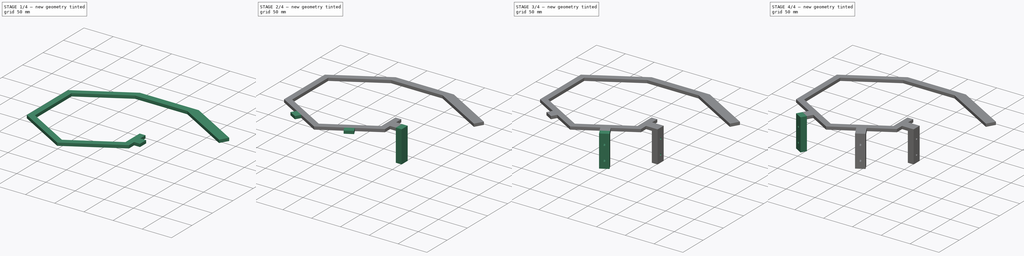
[diagram: build sequence overview — one tinted view per stage of 4, left to right]
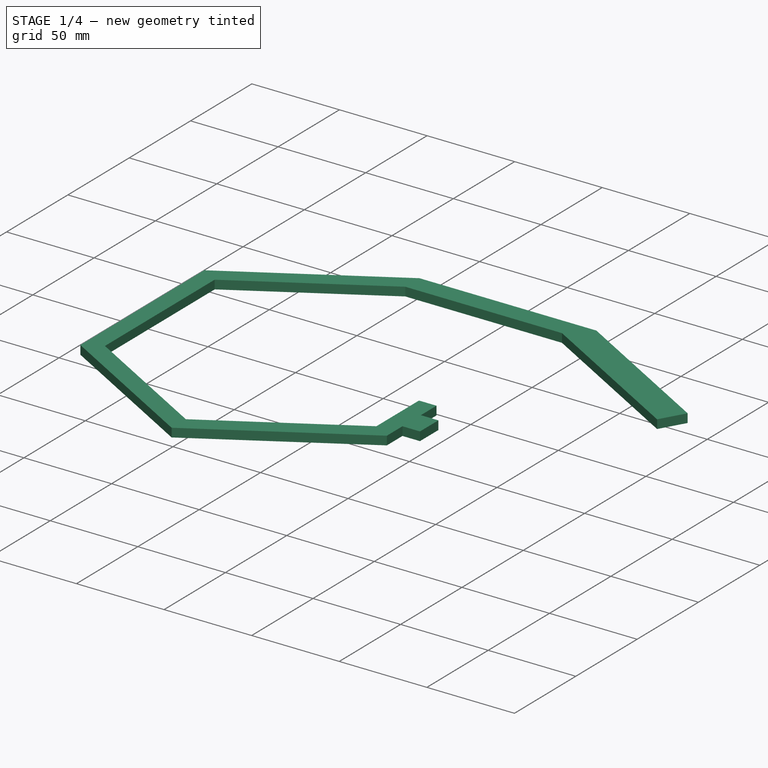
[diagram: stage 1 of 4 — iso view after this stage's code; geometry added in this stage tinted green]
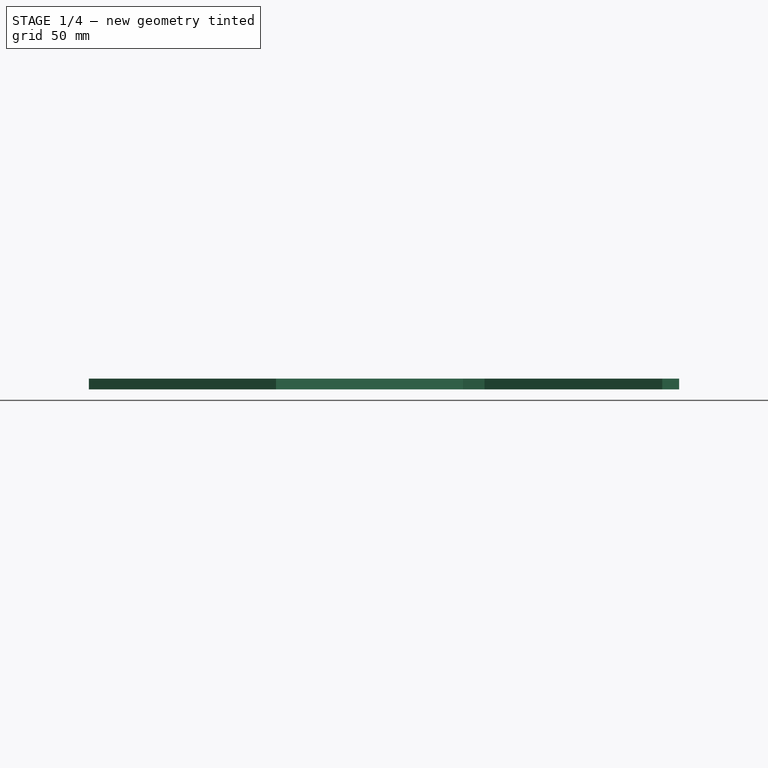
[diagram: stage 1 of 4 — front view after this stage's code; geometry added in this stage tinted green]
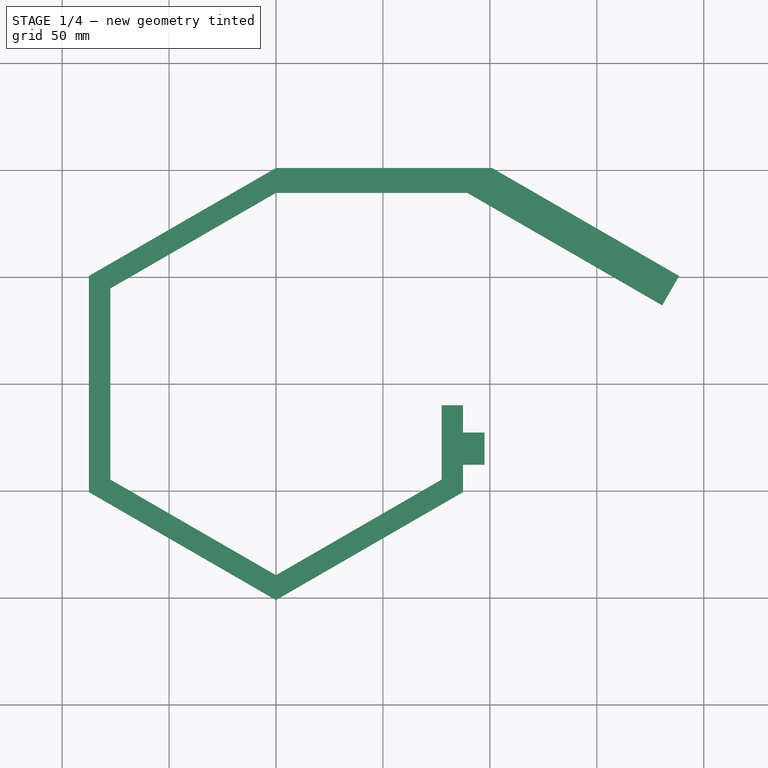
[diagram: stage 1 of 4 — top view after this stage's code; geometry added in this stage tinted green]
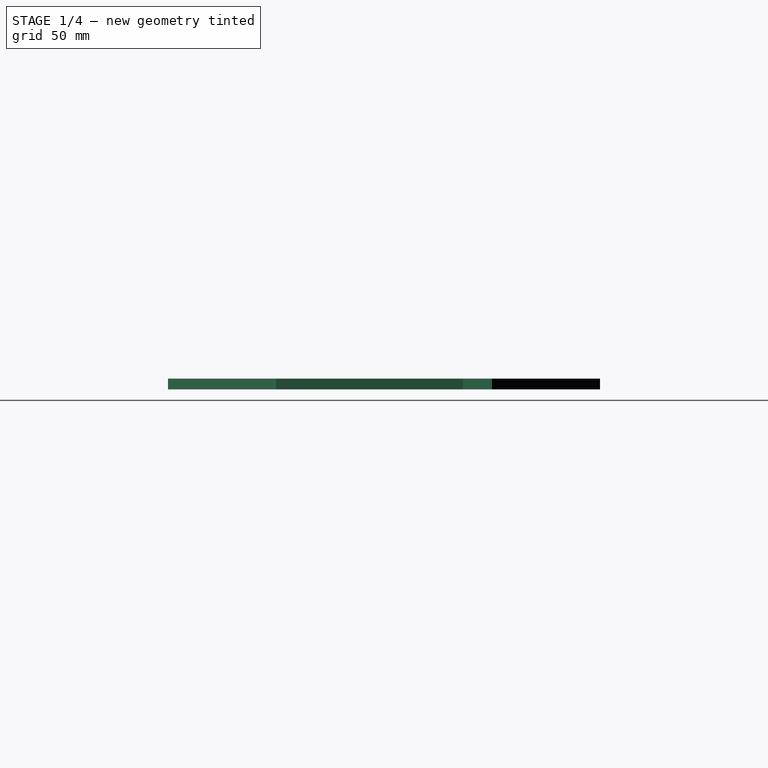
[diagram: stage 1 of 4 — right view after this stage's code; geometry added in this stage tinted green]
FCSTD DOCUMENT  (FreeCAD 0.20R29177 +426 (Git))
Label: hexagonHandlerSketch
License: All rights reserved
LicenseURL: http://en.wikipedia.org/wiki/All_rights_reserved
objects: Sketcher::SketchObject×10, PartDesign::Pad×7, PartDesign::Hole×3, PartDesign::CoordinateSystem×1, PartDesign::Body×1
note: 32 computed .brp shape members not serialized (recipe doc carries the construction recipe); baked Part::Feature solids carry a one-line shape summary decoded from their .brp

FEATURE [Sketcher::SketchObject] Sketch
  FullyConstrained = true
  MapMode = 5
  Support = -> [XY_Plane]
  sketch-geometry (18):
    g0: LineSegment StartX=77.466 StartY=-44.725 StartZ=0 EndX=77.466 EndY=-9.995 EndZ=0
    g1: LineSegment StartX=0 StartY=89.45 StartZ=0 EndX=-77.466 EndY=44.725 EndZ=0
    g2: LineSegment StartX=-77.466 StartY=44.725 StartZ=0 EndX=-77.466 EndY=-44.725 EndZ=0
    g3: LineSegment StartX=-77.466 StartY=-44.725 StartZ=0 EndX=0 EndY=-89.45 EndZ=0
    g4: LineSegment StartX=0 StartY=-89.45 StartZ=0 EndX=77.466 EndY=-44.725 EndZ=0
    g5: Circle CenterX=0 CenterY=0 CenterZ=0 NormalX=0 NormalY=0 NormalZ=1 AngleXU=0 Radius=89.45
    g6: LineSegment StartX=87.466 StartY=-50.4945 StartZ=0 EndX=87.466 EndY=-9.995 EndZ=0
    g7: LineSegment StartX=0 StartY=100.995 StartZ=0 EndX=-87.466 EndY=50.4945 EndZ=0
    g8: LineSegment StartX=-87.466 StartY=50.4945 StartZ=0 EndX=-87.466 EndY=-50.4945 EndZ=0
    g9: LineSegment StartX=-87.466 StartY=-50.4945 StartZ=0 EndX=0 EndY=-100.995 EndZ=0
    g10: LineSegment StartX=0 StartY=-100.995 StartZ=0 EndX=87.466 EndY=-50.4945 EndZ=0
    g11: Circle CenterX=0 CenterY=0 CenterZ=0 NormalX=0 NormalY=0 NormalZ=1 AngleXU=0 Radius=100.995
    g12: LineSegment StartX=0 StartY=100.995 StartZ=0 EndX=100.998 EndY=100.995 EndZ=0
    g13: LineSegment StartX=100.998 StartY=100.995 StartZ=0 EndX=188.465 EndY=50.496 EndZ=0
    g14: LineSegment StartX=188.465 StartY=50.496 StartZ=0 EndX=180.579 EndY=36.8368 EndZ=0
    g15: LineSegment StartX=180.579 StartY=36.8368 StartZ=0 EndX=89.45 EndY=89.45 EndZ=0
    g16: LineSegment StartX=89.45 StartY=89.45 StartZ=0 EndX=0 EndY=89.45 EndZ=0
    g17: LineSegment StartX=77.466 StartY=-9.995 StartZ=0 EndX=87.466 EndY=-9.995 EndZ=0
  constraints (52):
    c: Coincident(g1,g2)
    c: Coincident(g2,g3)
    c: Coincident(g3,g4)
    c: Coincident(g4,g0)
    c: PointOnObject(g1,g5)
    c: PointOnObject(g1,g5)
    c: PointOnObject(g2,g5)
    c: PointOnObject(g3,g5)
    c: PointOnObject(g4,g5)
    c: Coincident(g5,g-1)
    c: Vertical(g0)
    c: DistanceY(g2,g2) = 89.45
    c: Coincident(g7,g8)
    c: Coincident(g8,g9)
    c: Coincident(g9,g10)
    c: Coincident(g10,g6)
    c: PointOnObject(g7,g11)
    c: PointOnObject(g7,g11)
    c: PointOnObject(g8,g11)
    c: PointOnObject(g9,g11)
    c: PointOnObject(g10,g11)
    c: Vertical(g6)
    c: Coincident(g11,g5)
    c: DistanceX(g7,g1) = 10
    c: Diameter(g5) = 178.9
    c: Diameter(g11) = 201.99
    c: PointOnObject(g1,g-2)
    c: PointOnObject(g7,g-2)
    c: Horizontal(g0,g2)
    c: PointOnObject(g3,g-2)
    c: DistanceY(g0,g0) = 34.73
    c: PointOnObject(g9,g-2)
    c: Horizontal(g6,g8)
    c: Parallel(g6,g2)
    c: Parallel(g2,g8)
    c: Horizontal(g6,g0)
    c: Coincident(g7,g12)
    c: Horizontal(g12)
    c: Coincident(g12,g13)
    c: Coincident(g13,g14)
    c: Coincident(g14,g15)
    c: Coincident(g15,g16)
    c: Coincident(g16,g1)
    c: Horizontal(g16)
    c: Parallel(g15,g13)
    c: Parallel(g13,g3)
    c: Perpendicular(g14,g13)
    c: Equal(g12,g7)
    c: Equal(g16,g1)
    c: Equal(g13,g12)
    c: Coincident(g17,g0)
    c: Coincident(g17,g6)
FEATURE [PartDesign::Pad] Pad
  Direction = (0,0,1)
  Length = 5
  Length2 = 10
  Profile = -> Sketch
  ReferenceAxis = -> Sketch [N_Axis]
  Type = 0
FEATURE [Sketcher::SketchObject] Sketch001
  ExternalGeometry = -> [Pad]
  FullyConstrained = true
  MapMode = 5
  Placement = pos=(87.466,0,0) rot=(0.57735,0.57735,0.57735;2.0944rad)
  Support = -> [Pad]
  sketch-geometry (5):
    g0: LineSegment StartX=-37.7447 StartY=5 StartZ=0 EndX=-22.7447 EndY=5 EndZ=0
    g1: LineSegment StartX=-22.7447 StartY=5 StartZ=0 EndX=-22.7447 EndY=0 EndZ=0
    g2: LineSegment StartX=-22.7447 StartY=0 StartZ=0 EndX=-37.7447 EndY=0 EndZ=0
    g3: LineSegment StartX=-37.7447 StartY=0 StartZ=0 EndX=-37.7447 EndY=5 EndZ=0
    g4: GeomPoint X=-30.2447 Y=5 Z=0
  constraints (12):
    c: Coincident(g0,g1)
    c: Coincident(g1,g2)
    c: Coincident(g2,g3)
    c: Coincident(g3,g0)
    c: Horizontal(g0)
    c: Horizontal(g2)
    c: Vertical(g1)
    c: Vertical(g3)
    c: PointOnObject(g1,g-4)
    c: Symmetric(g-3,g-3,g4)
    c: Symmetric(g0,g0,g4)
    c: DistanceX(g0,g0) = 15
FEATURE [PartDesign::Pad] Pad001
  BaseFeature = -> Pad
  Direction = (1,0,0)
  Length = 10
  Length2 = 10
  Profile = -> Sketch001
  ReferenceAxis = -> Sketch001 [N_Axis]
  Type = 0
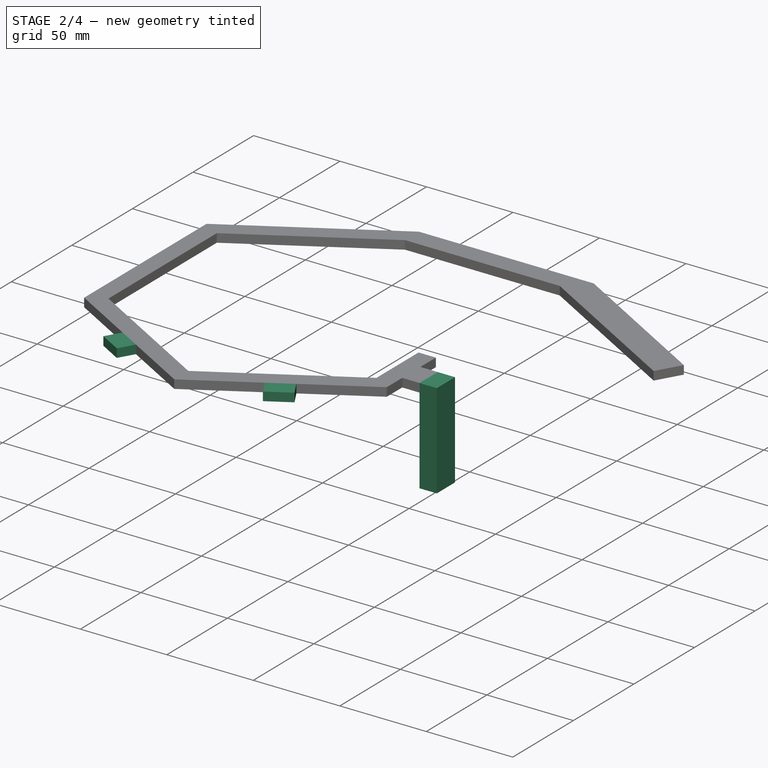
[diagram: stage 2 of 4 — iso view after this stage's code; geometry added in this stage tinted green]
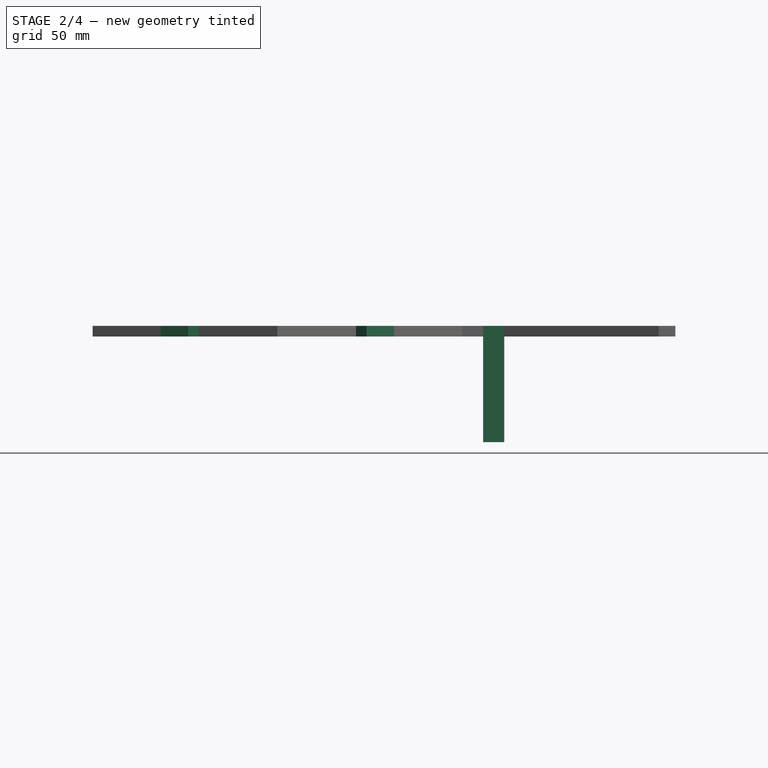
[diagram: stage 2 of 4 — front view after this stage's code; geometry added in this stage tinted green]
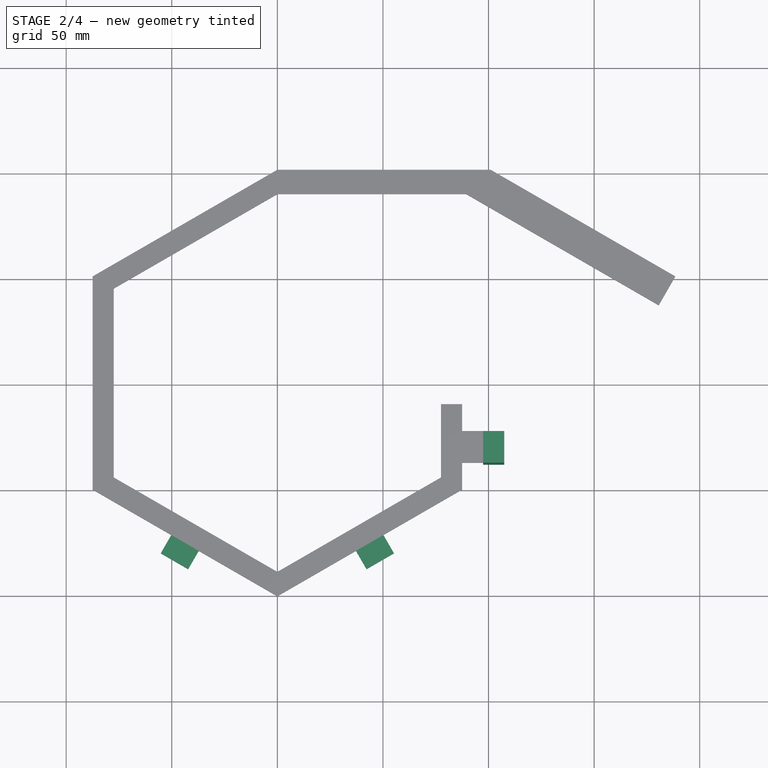
[diagram: stage 2 of 4 — top view after this stage's code; geometry added in this stage tinted green]
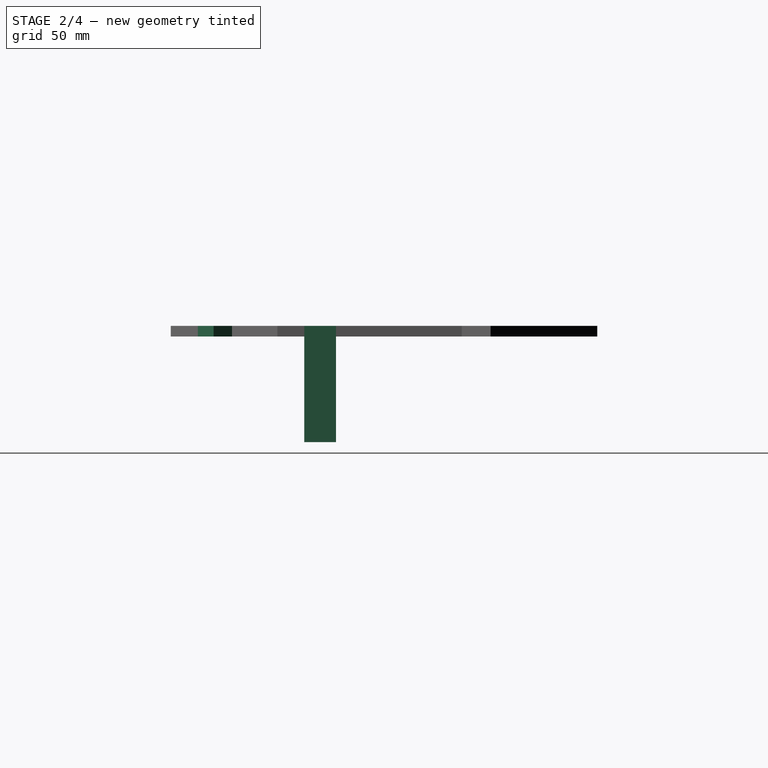
[diagram: stage 2 of 4 — right view after this stage's code; geometry added in this stage tinted green]
FEATURE [Sketcher::SketchObject] Sketch002
  ExternalGeometry = -> [Pad]
  FullyConstrained = true
  MapMode = 5
  Placement = pos=(43.733,-75.7447,0) rot=(0.935109,0.25057,0.25057;1.63784rad)
  Support = -> [Pad001]
  sketch-geometry (6):
    g0: LineSegment StartX=-7.5 StartY=5 StartZ=0 EndX=7.5 EndY=5 EndZ=0
    g1: LineSegment StartX=7.5 StartY=5 StartZ=0 EndX=7.5 EndY=-3.6e-15 EndZ=0
    g2: LineSegment StartX=7.5 StartY=-3.6e-15 StartZ=0 EndX=-7.5 EndY=-3.6e-15 EndZ=0
    g3: LineSegment StartX=-7.5 StartY=-3.6e-15 StartZ=0 EndX=-7.5 EndY=5 EndZ=0
    g4: GeomPoint X=-1.8e-15 Y=5 Z=0
    g5: GeomPoint X=-1.8e-15 Y=5 Z=0
  constraints (13):
    c: Coincident(g0,g1)
    c: Coincident(g1,g2)
    c: Coincident(g2,g3)
    c: Coincident(g3,g0)
    c: Horizontal(g0)
    c: Horizontal(g2)
    c: Vertical(g1)
    c: Vertical(g3)
    c: Symmetric(g0,g0,g4)
    c: DistanceX(g0,g0) = 15
    c: Symmetric(g-3,g-3,g5)
    c: Coincident(g4,g5)
    c: PointOnObject(g1,g-1)
FEATURE [PartDesign::Pad] Pad002
  BaseFeature = -> Pad001
  Direction = (0.500015,-0.866017,-1e-16)
  Length = 10
  Length2 = 10
  Profile = -> Sketch002
  ReferenceAxis = -> Sketch002 [N_Axis]
  Type = 0
FEATURE [Sketcher::SketchObject] Sketch003
  ExternalGeometry = -> [Pad]
  FullyConstrained = true
  MapMode = 5
  Placement = pos=(-43.733,-75.7447,0) rot=(0.935109,-0.25057,-0.25057;1.63784rad)
  Support = -> [Pad002]
  sketch-geometry (5):
    g0: LineSegment StartX=-7.5 StartY=5 StartZ=0 EndX=7.5 EndY=5 EndZ=0
    g1: LineSegment StartX=7.5 StartY=5 StartZ=0 EndX=7.5 EndY=0 EndZ=0
    g2: LineSegment StartX=7.5 StartY=0 StartZ=0 EndX=-7.5 EndY=0 EndZ=0
    g3: LineSegment StartX=-7.5 StartY=0 StartZ=0 EndX=-7.5 EndY=5 EndZ=0
    g4: GeomPoint X=1.3e-15 Y=5 Z=0
  constraints (12):
    c: Coincident(g0,g1)
    c: Coincident(g1,g2)
    c: Coincident(g2,g3)
    c: Coincident(g3,g0)
    c: Horizontal(g0)
    c: Horizontal(g2)
    c: Vertical(g1)
    c: Vertical(g3)
    c: Symmetric(g0,g0,g4)
    c: DistanceX(g0,g0) = 15
    c: Symmetric(g-3,g-3,g4)
    c: PointOnObject(g1,g-1)
FEATURE [PartDesign::Pad] Pad003
  BaseFeature = -> Pad002
  Direction = (-0.500015,-0.866017,-1e-16)
  Length = 10
  Length2 = 10
  Profile = -> Sketch003
  ReferenceAxis = -> Sketch003 [N_Axis]
  Type = 0
FEATURE [Sketcher::SketchObject] Sketch004
  ExternalGeometry = -> [Pad003]
  FullyConstrained = true
  MapMode = 5
  Placement = pos=(97.466,0,0) rot=(0.57735,0.57735,0.57735;2.0944rad)
  Support = -> [Pad003]
  sketch-geometry (4):
    g0: LineSegment StartX=-37.7447 StartY=5 StartZ=0 EndX=-22.7447 EndY=5 EndZ=0
    g1: LineSegment StartX=-22.7447 StartY=5 StartZ=0 EndX=-22.7447 EndY=-50 EndZ=0
    g2: LineSegment StartX=-22.7447 StartY=-50 StartZ=0 EndX=-37.7447 EndY=-50 EndZ=0
    g3: LineSegment StartX=-37.7447 StartY=-50 StartZ=0 EndX=-37.7447 EndY=5 EndZ=0
  constraints (10):
    c: Coincident(g0,g1)
    c: Coincident(g1,g2)
    c: Coincident(g2,g3)
    c: Coincident(g3,g0)
    c: Horizontal(g2)
    c: Vertical(g1)
    c: Vertical(g3)
    c: Coincident(g0,g-4)
    c: Coincident(g0,g-3)
    c: DistanceY(g1,g1) = 55
FEATURE [PartDesign::Pad] Pad004
  BaseFeature = -> Pad003
  Direction = (1,0,0)
  Length = 10
  Length2 = 10
  Profile = -> Sketch004
  ReferenceAxis = -> Sketch004 [N_Axis]
  Type = 0
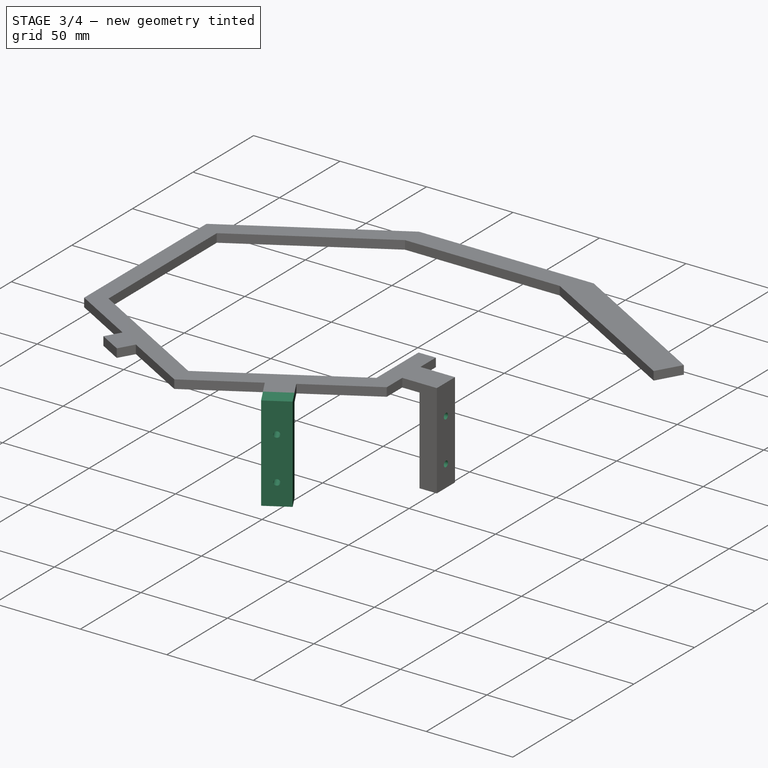
[diagram: stage 3 of 4 — iso view after this stage's code; geometry added in this stage tinted green]
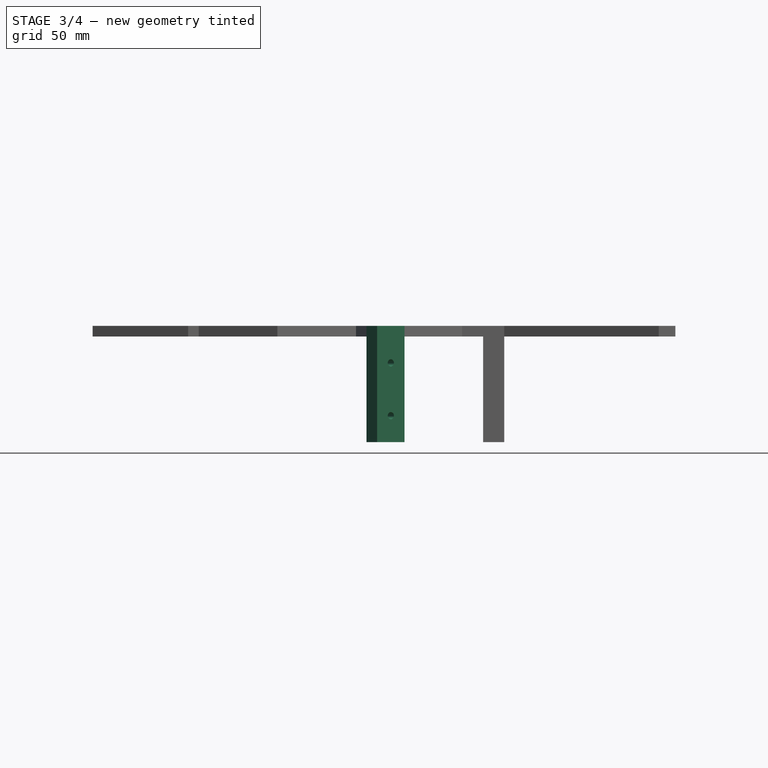
[diagram: stage 3 of 4 — front view after this stage's code; geometry added in this stage tinted green]
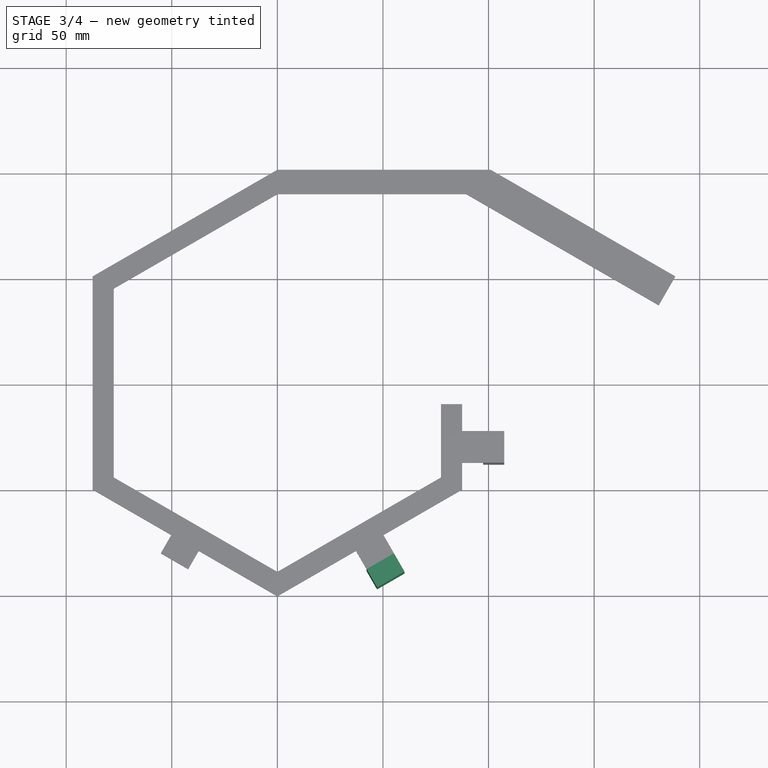
[diagram: stage 3 of 4 — top view after this stage's code; geometry added in this stage tinted green]
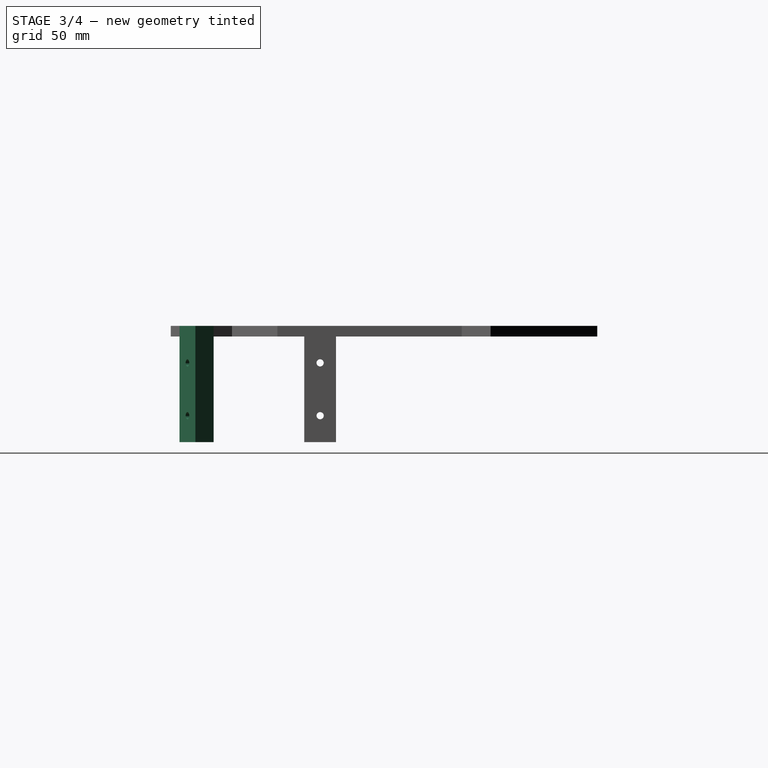
[diagram: stage 3 of 4 — right view after this stage's code; geometry added in this stage tinted green]
FEATURE [Sketcher::SketchObject] Sketch005
  ExternalGeometry = -> [Pad004]
  FullyConstrained = false
  MapMode = 5
  Placement = pos=(107.466,0,0) rot=(0.57735,0.57735,0.57735;2.0944rad)
  Support = -> [Pad004]
  sketch-geometry (5):
    g0: Circle CenterX=-30.2447 CenterY=-37.5 CenterZ=0 NormalX=0 NormalY=0 NormalZ=1 AngleXU=0 Radius=2.19821
    g1: GeomPoint X=-22.7447 Y=-25 Z=0
    g2: Circle CenterX=-30.2447 CenterY=-12.5 CenterZ=0 NormalX=0 NormalY=0 NormalZ=1 AngleXU=0 Radius=2.19821
    g3: GeomPoint X=-37.7447 Y=0 Z=0
    g4: GeomPoint X=-22.7447 Y=0 Z=0
  constraints (7):
    c: Symmetric(g-3,g1,g0)
    c: PointOnObject(g3,g-1)
    c: Vertical(g3,g-4)
    c: PointOnObject(g4,g-1)
    c: Vertical(g4,g-4)
    c: Symmetric(g4,g-3,g1)
    c: Symmetric(g3,g1,g2)
FEATURE [PartDesign::Hole] Hole
  BaseFeature = -> Pad004
  CustomThreadClearance = 0
  Depth = 25
  DepthType = 0
  Diameter = 3.4
  DrillForDepth = false
  DrillPoint = 1
  DrillPointAngle = 118
  HoleCutCountersinkAngle = 90
  HoleCutCustomValues = false
  HoleCutDepth = 0
  HoleCutDiameter = 6.1
  HoleCutType = 0
  ModelThread = false
  Profile = -> Sketch005
  Tapered = false
  TaperedAngle = 90
  ThreadClass = 0
  ThreadDepth = 25
  ThreadDepthType = 0
  ThreadDirection = 0
  ThreadFit = 0
  ThreadSize = 9
  ThreadType = 1
  Threaded = false
  UseCustomThreadClearance = false
FEATURE [PartDesign::CoordinateSystem] LCS_1
  AttacherType = Attacher::AttachEngine3D
  AttachmentOffset = pos=(0,0,0) rot=(1,0,0;3.14159rad)
  MapMode = 11
  Placement = pos=(97.466,-30.2447,-37.5) rot=(0.57735,-0.57735,0.57735;4.18879rad)
  Support = -> [Hole]
FEATURE [Sketcher::SketchObject] Sketch006
  ExternalGeometry = -> [Hole]
  FullyConstrained = true
  MapMode = 5
  Placement = pos=(48.7331,-84.4049,0) rot=(0.935109,0.25057,0.25057;1.63784rad)
  Support = -> [Hole]
  sketch-geometry (5):
    g0: GeomPoint X=-2.17e-14 Y=5 Z=0
    g1: LineSegment StartX=-7.5 StartY=5 StartZ=0 EndX=7.5 EndY=5 EndZ=0
    g2: LineSegment StartX=7.5 StartY=5 StartZ=0 EndX=7.5 EndY=-50 EndZ=0
    g3: LineSegment StartX=7.5 StartY=-50 StartZ=0 EndX=-7.5 EndY=-50 EndZ=0
    g4: LineSegment StartX=-7.5 StartY=-50 StartZ=0 EndX=-7.5 EndY=5 EndZ=0
  constraints (12):
    c: Symmetric(g-3,g-3,g0)
    c: Coincident(g1,g2)
    c: Coincident(g2,g3)
    c: Coincident(g3,g4)
    c: Coincident(g4,g1)
    c: Horizontal(g1)
    c: Horizontal(g3)
    c: Vertical(g2)
    c: Vertical(g4)
    c: Symmetric(g1,g1,g0)
    c: DistanceX(g1,g1) = 15
    c: DistanceY(g2,g2) = 55
FEATURE [PartDesign::Pad] Pad005
  BaseFeature = -> Hole
  Direction = (0.500015,-0.866017,-1e-16)
  Length = 10
  Length2 = 10
  Profile = -> Sketch006
  ReferenceAxis = -> Sketch006 [N_Axis]
  Type = 0
FEATURE [Sketcher::SketchObject] Sketch007
  ExternalGeometry = -> [Pad005]
  FullyConstrained = false
  MapMode = 5
  Placement = pos=(53.7333,-93.0651,-1.84e-14) rot=(0.935109,0.25057,0.25057;1.63784rad)
  Support = -> [Pad005]
  sketch-geometry (5):
    g0: GeomPoint X=7.5 Y=0 Z=0
    g1: GeomPoint X=-7.5 Y=0 Z=0
    g2: Circle CenterX=-6.68e-14 CenterY=-37.5 CenterZ=0 NormalX=0 NormalY=0 NormalZ=1 AngleXU=0 Radius=3.21674
    g3: Circle CenterX=-5.42e-14 CenterY=-12.5 CenterZ=0 NormalX=0 NormalY=0 NormalZ=1 AngleXU=0 Radius=2.35657
    g4: GeomPoint X=7.5 Y=-25 Z=0
  constraints (7):
    c: PointOnObject(g0,g-1)
    c: Vertical(g0,g-3)
    c: PointOnObject(g1,g-1)
    c: Vertical(g1,g-3)
    c: Symmetric(g0,g-4,g4)
    c: Symmetric(g1,g4,g3)
    c: Symmetric(g4,g-4,g2)
FEATURE [PartDesign::Hole] Hole001
  BaseFeature = -> Pad005
  CustomThreadClearance = 0
  Depth = 25
  DepthType = 0
  Diameter = 3.4
  DrillForDepth = false
  DrillPoint = 1
  DrillPointAngle = 118
  HoleCutCountersinkAngle = 90
  HoleCutCustomValues = false
  HoleCutDepth = 0
  HoleCutDiameter = 6.1
  HoleCutType = 0
  ModelThread = false
  Profile = -> Sketch007
  Tapered = false
  TaperedAngle = 90
  ThreadClass = 0
  ThreadDepth = 25
  ThreadDepthType = 0
  ThreadDirection = 0
  ThreadFit = 0
  ThreadSize = 9
  ThreadType = 1
  Threaded = false
  UseCustomThreadClearance = false
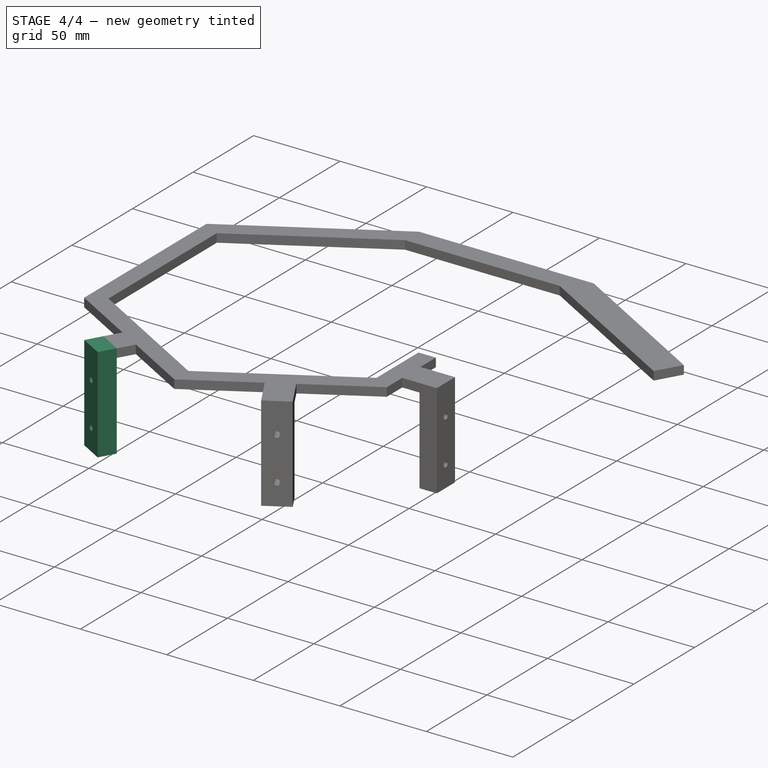
[diagram: stage 4 of 4 — iso view after this stage's code; geometry added in this stage tinted green]
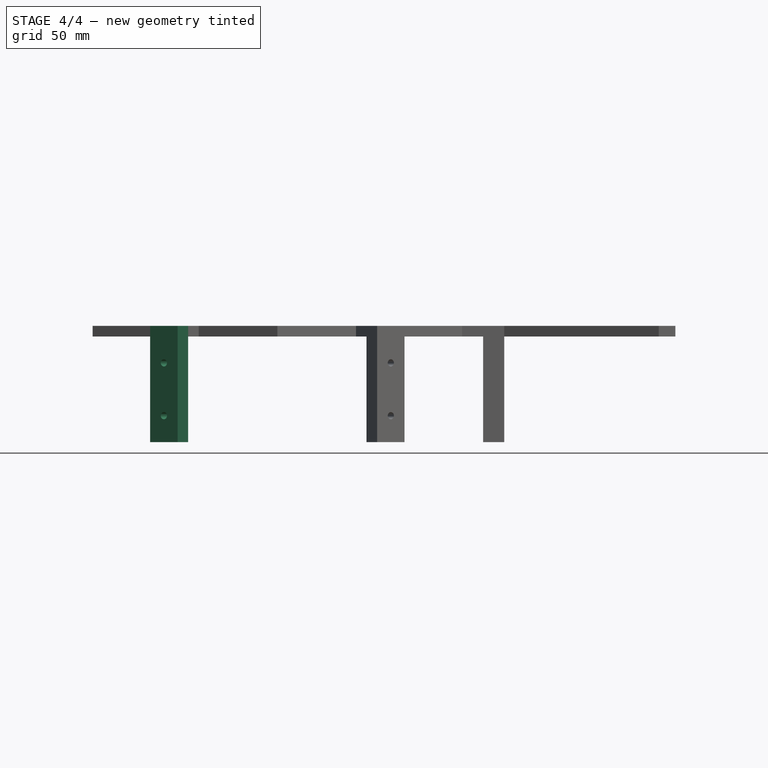
[diagram: stage 4 of 4 — front view after this stage's code; geometry added in this stage tinted green]
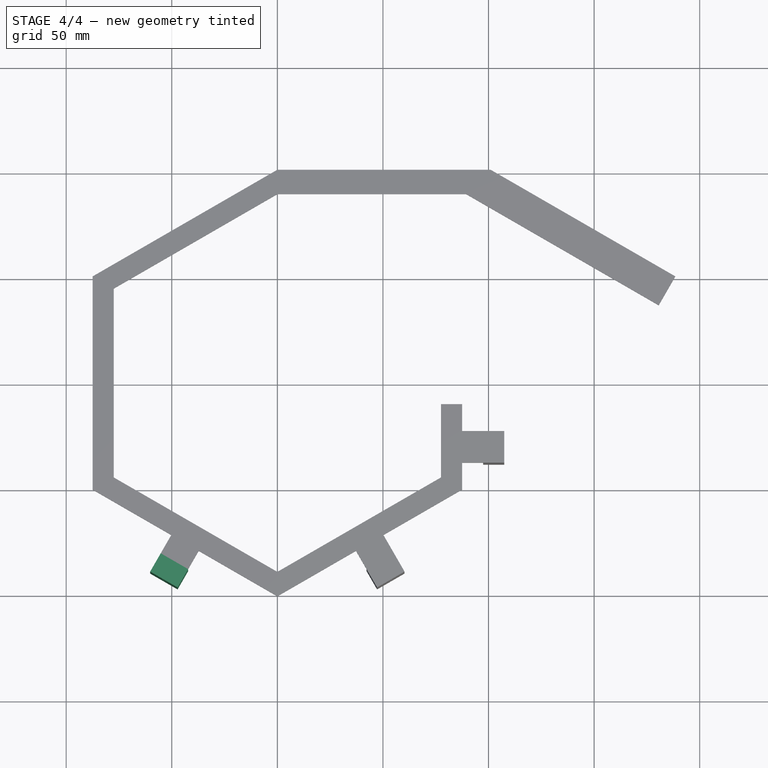
[diagram: stage 4 of 4 — top view after this stage's code; geometry added in this stage tinted green]
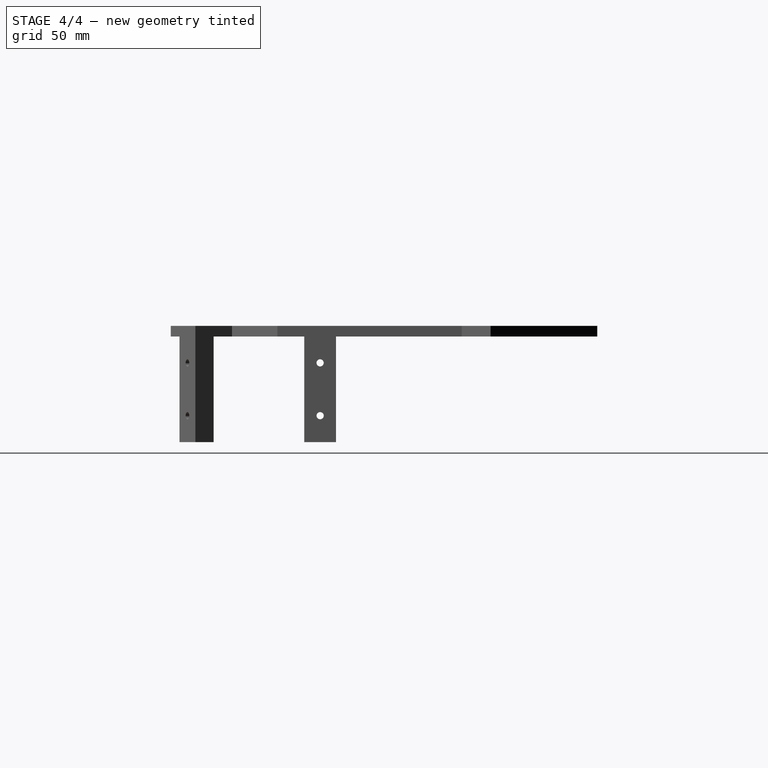
[diagram: stage 4 of 4 — right view after this stage's code; geometry added in this stage tinted green]
FEATURE [Sketcher::SketchObject] Sketch008
  ExternalGeometry = -> [Hole001]
  FullyConstrained = true
  MapMode = 5
  Placement = pos=(-48.7331,-84.4049,1.9e-15) rot=(0.935109,-0.25057,-0.25057;1.63784rad)
  Support = -> [Hole001]
  sketch-geometry (4):
    g0: LineSegment StartX=-7.5 StartY=5 StartZ=0 EndX=7.5 EndY=5 EndZ=0
    g1: LineSegment StartX=7.5 StartY=5 StartZ=0 EndX=7.5 EndY=-50 EndZ=0
    g2: LineSegment StartX=7.5 StartY=-50 StartZ=0 EndX=-7.5 EndY=-50 EndZ=0
    g3: LineSegment StartX=-7.5 StartY=-50 StartZ=0 EndX=-7.5 EndY=5 EndZ=0
  constraints (10):
    c: Coincident(g0,g1)
    c: Coincident(g1,g2)
    c: Coincident(g2,g3)
    c: Coincident(g3,g0)
    c: Horizontal(g2)
    c: Vertical(g1)
    c: Vertical(g3)
    c: Coincident(g0,g-3)
    c: Coincident(g0,g-3)
    c: DistanceY(g1,g1) = 55
FEATURE [PartDesign::Pad] Pad006
  BaseFeature = -> Hole001
  Direction = (-0.500015,-0.866017,0)
  Length = 10
  Length2 = 10
  Profile = -> Sketch008
  ReferenceAxis = -> Sketch008 [N_Axis]
  Type = 0
FEATURE [Sketcher::SketchObject] Sketch009
  ExternalGeometry = -> [Pad006]
  FullyConstrained = false
  MapMode = 5
  Placement = pos=(-53.7333,-93.0651,0) rot=(0.935109,-0.25057,-0.25057;1.63784rad)
  Support = -> [Pad006]
  sketch-geometry (5):
    g0: Circle CenterX=1.48e-14 CenterY=-12.5 CenterZ=0 NormalX=0 NormalY=0 NormalZ=1 AngleXU=0 Radius=1.75974
    g1: Circle CenterX=2.05e-14 CenterY=-37.5 CenterZ=0 NormalX=0 NormalY=0 NormalZ=1 AngleXU=0 Radius=3.39389
    g2: GeomPoint X=7.5 Y=0 Z=0
    g3: GeomPoint X=-7.5 Y=0 Z=0
    g4: GeomPoint X=7.5 Y=-25 Z=0
  constraints (7):
    c: PointOnObject(g2,g-1)
    c: Vertical(g2,g-3)
    c: PointOnObject(g3,g-1)
    c: Vertical(g3,g-3)
    c: Symmetric(g2,g-4,g4)
    c: Symmetric(g4,g3,g0)
    c: Symmetric(g4,g-4,g1)
FEATURE [PartDesign::Hole] Hole002
  BaseFeature = -> Pad006
  CustomThreadClearance = 0
  Depth = 25
  DepthType = 0
  Diameter = 3.4
  DrillForDepth = false
  DrillPoint = 1
  DrillPointAngle = 118
  HoleCutCountersinkAngle = 90
  HoleCutCustomValues = false
  HoleCutDepth = 0
  HoleCutDiameter = 6.1
  HoleCutType = 0
  ModelThread = false
  Profile = -> Sketch009
  Tapered = false
  TaperedAngle = 90
  ThreadClass = 0
  ThreadDepth = 25
  ThreadDepthType = 0
  ThreadDirection = 0
  ThreadFit = 0
  ThreadSize = 9
  ThreadType = 1
  Threaded = false
  UseCustomThreadClearance = false
FEATURE [PartDesign::Body] Body
  Group = -> [Sketch,Pad,Sketch001,Pad001,Sketch002,Pad002,Sketch003,Pad003,Sketch004,Pad004,Sketch005,Hole,LCS_1,Sketch006,Pad005,Sketch007,Hole001,Sketch008,Pad006,Sketch009,Hole002]
  Origin = -> Origin
  Tip = -> Hole002
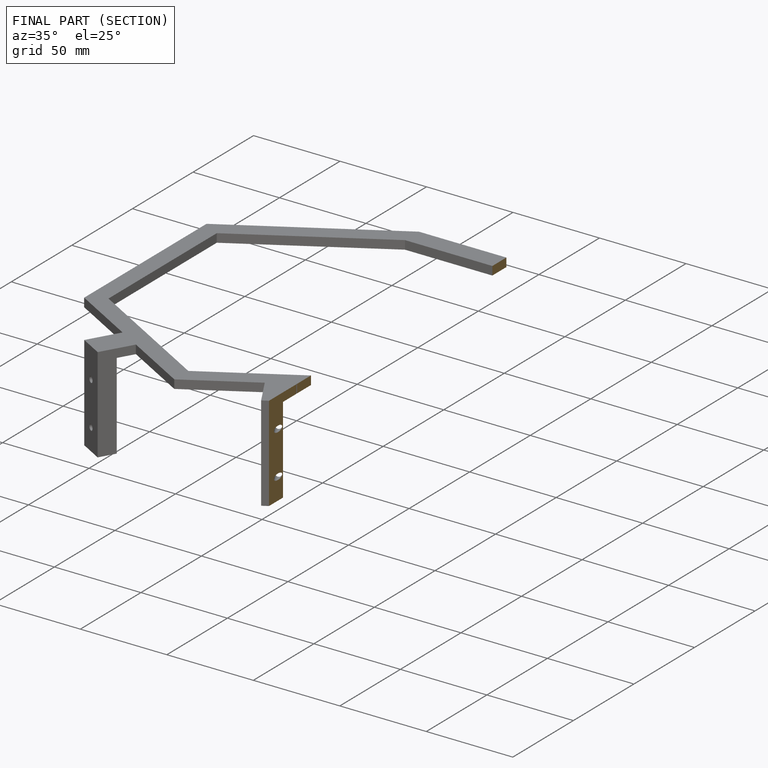
[diagram: finished part — half-section view (interior)]
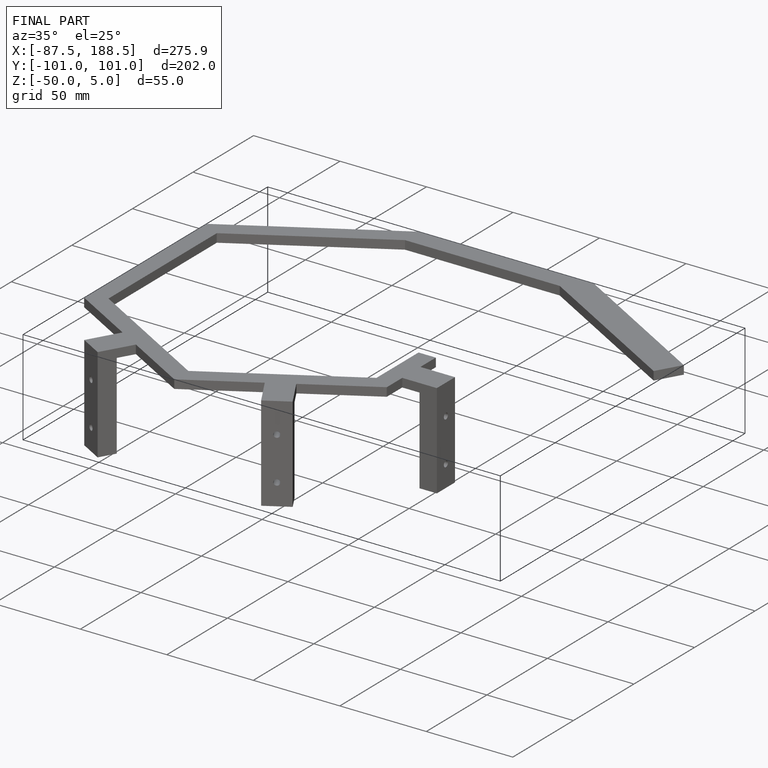
[diagram: finished part — iso view with bounding-box wireframe]
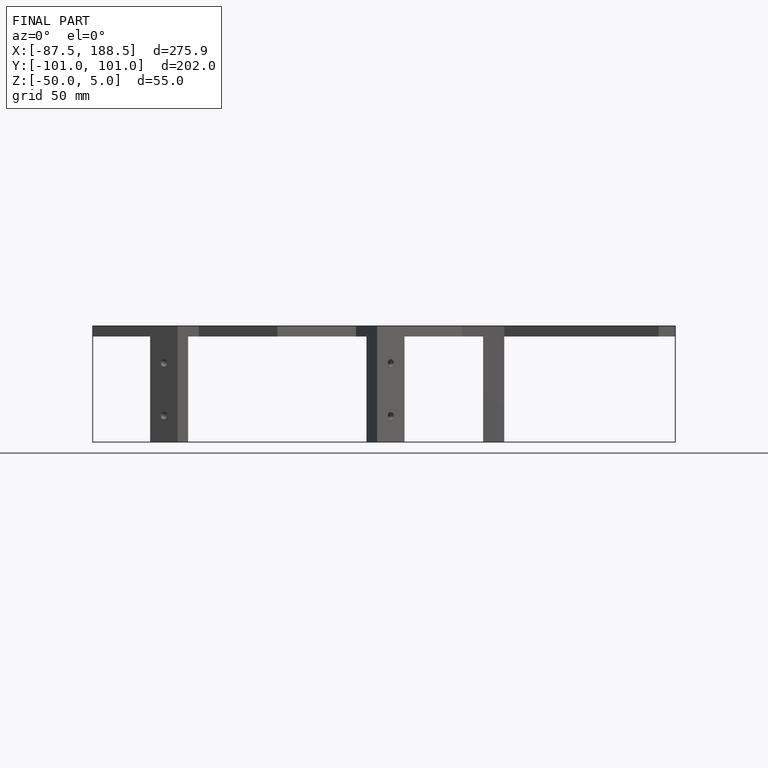
[diagram: finished part — front view with bounding-box wireframe]
